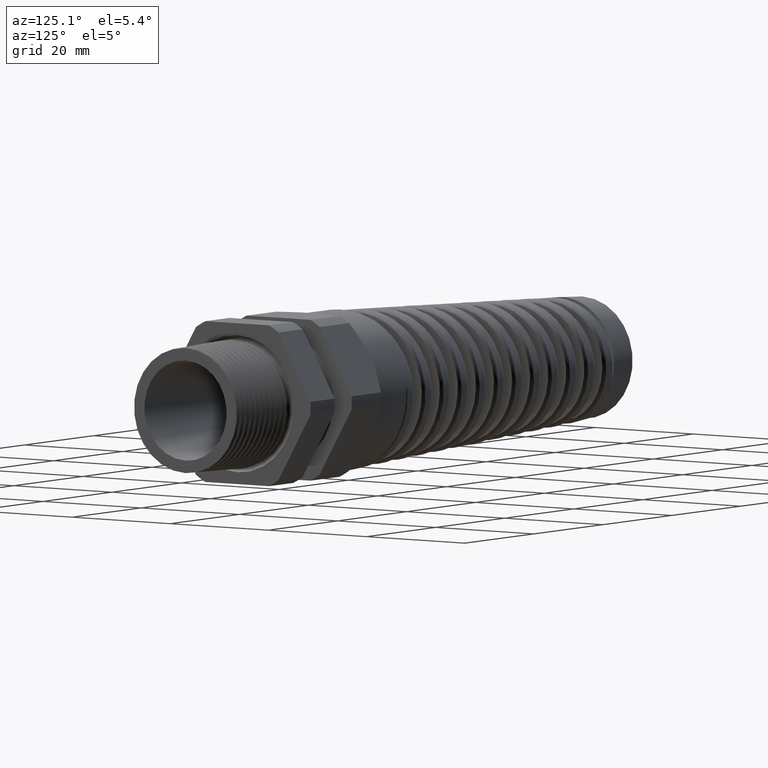
[diagram: clean part render]
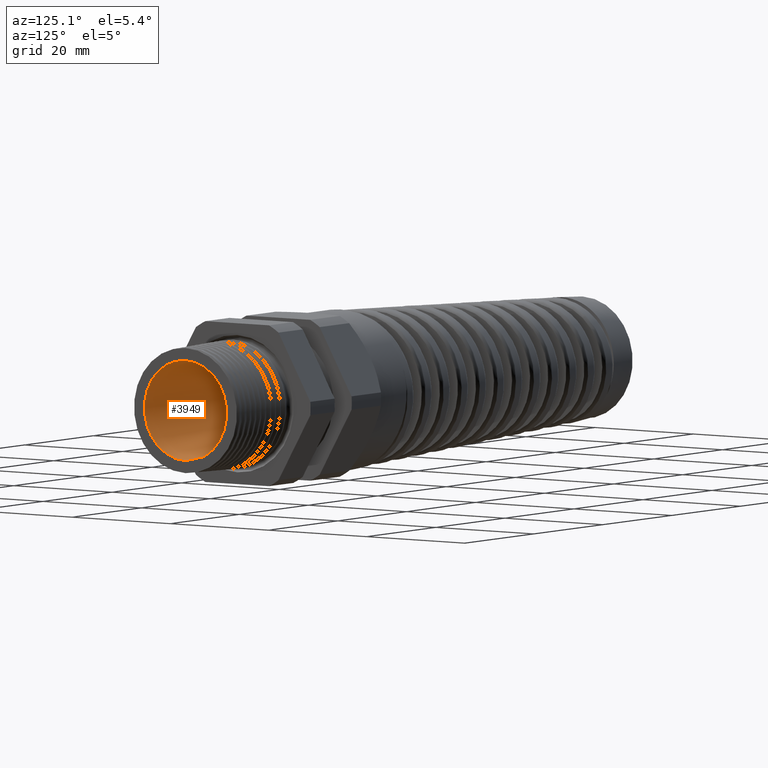
[diagram: same view with one face highlighted and labeled with its STEP entity id]
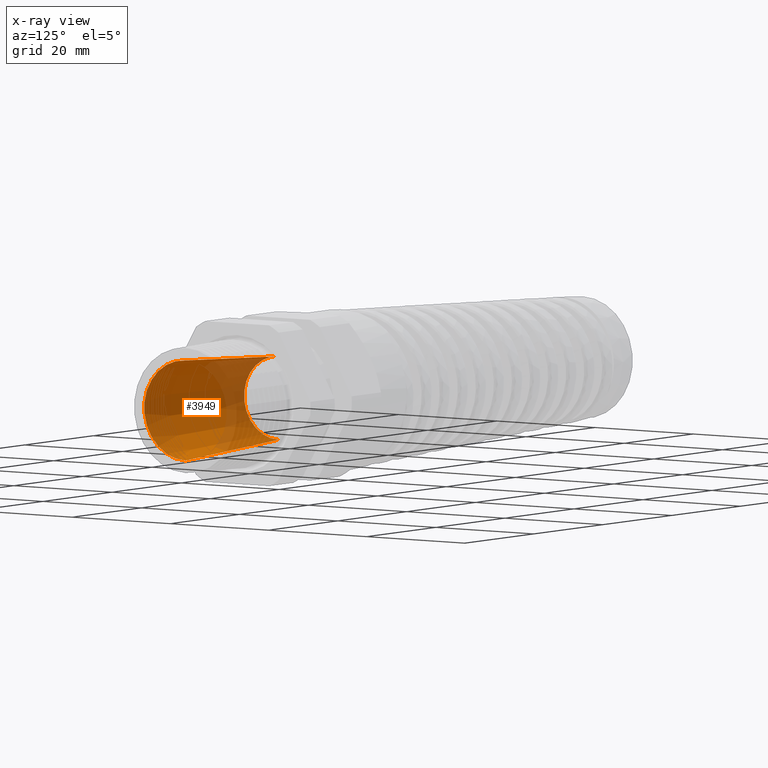
[diagram: x-ray of the same camera — body ghosted, the highlighted face saturated]
A machine part, auxiliary view. The second image highlights one B-rep face of the part: STEP entity #3949.
The next image is the same camera in x-ray: the body ghosted, the highlighted face saturated — about 30% of this face is hidden behind the body in this view.
In plain terms, the highlighted conical surface has half-angle 2.97 deg.
Its self-contained STEP definition (entity closure, byte-faithful):
#3949 = ADVANCED_FACE ( 'NONE', ( #17637 ), #17567, .F. ) ;
#3950 = EDGE_LOOP ( 'NONE', ( #3951, #3955, #3976, #4362 ) ) ;
#3951 = ORIENTED_EDGE ( 'NONE', *, *, #3952, .F. ) ;
#3952 = EDGE_CURVE ( 'NONE', #3953, #3954, #17563, .T. ) ;
#3953 = VERTEX_POINT ( 'NONE', #17559 ) ;
#3954 = VERTEX_POINT ( 'NONE', #17558 ) ;
#3955 = ORIENTED_EDGE ( 'NONE', *, *, #3956, .T. ) ;
#3956 = EDGE_CURVE ( 'NONE', #3953, #3975, #17557, .T. ) ;
#3975 = VERTEX_POINT ( 'NONE', #17947 ) ;
#3976 = ORIENTED_EDGE ( 'NONE', *, *, #3977, .T. ) ;
#3977 = EDGE_CURVE ( 'NONE', #3975, #4361, #17946, .T. ) ;
#4361 = VERTEX_POINT ( 'NONE', #18583 ) ;
#4362 = ORIENTED_EDGE ( 'NONE', *, *, #4363, .F. ) ;
#4363 = EDGE_CURVE ( 'NONE', #3954, #4361, #18582, .T. ) ;
#17554 = DIRECTION ( 'NONE',  ( 0.9986567915187993800, 6.345292932195006300E-018, 0.05181324882090775800 ) ) ;
#17555 = VECTOR ( 'NONE', #17554, 39.37007874015748100 ) ;
#17556 = CARTESIAN_POINT ( 'NONE',  ( -0.7800787401574805800, 3.367778697655221900E-017, 0.2750000000000000200 ) ) ;
#17557 = LINE ( 'NONE', #17556, #17555 ) ;
#17558 = CARTESIAN_POINT ( 'NONE',  ( -0.7800787401574805800, 0.0000000000000000000, -0.2750000000000000200 ) ) ;
#17559 = CARTESIAN_POINT ( 'NONE',  ( -0.7800787401574805800, 3.367778697655221900E-017, 0.2750000000000000200 ) ) ;
#17560 = DIRECTION ( 'NONE',  ( 0.0000000000000000000, 0.0000000000000000000, -1.000000000000000000 ) ) ;
#17561 = DIRECTION ( 'NONE',  ( 1.000000000000000000, 0.0000000000000000000, 0.0000000000000000000 ) ) ;
#17562 = AXIS2_PLACEMENT_3D ( 'NONE', #17636, #17561, #17560 ) ;
#17563 = CIRCLE ( 'NONE', #17562, 0.2750000000000000200 ) ;
#17564 = DIRECTION ( 'NONE',  ( 0.0000000000000000000, 0.0000000000000000000, -1.000000000000000000 ) ) ;
#17565 = DIRECTION ( 'NONE',  ( 1.000000000000000000, 0.0000000000000000000, 0.0000000000000000000 ) ) ;
#17566 = AXIS2_PLACEMENT_3D ( 'NONE', #17635, #17565, #17564 ) ;
#17567 = CONICAL_SURFACE ( 'NONE', #17566, 0.2750000000000000200, 0.05183645995742963700 ) ;
#17635 = CARTESIAN_POINT ( 'NONE',  ( -0.7800787401574805800, 0.0000000000000000000, 0.0000000000000000000 ) ) ;
#17636 = CARTESIAN_POINT ( 'NONE',  ( -0.7800787401574805800, 0.0000000000000000000, 0.0000000000000000000 ) ) ;
#17637 = FACE_OUTER_BOUND ( 'NONE', #3950, .T. ) ;
#17942 = DIRECTION ( 'NONE',  ( 0.0000000000000000000, 0.0000000000000000000, -1.000000000000000000 ) ) ;
#17943 = DIRECTION ( 'NONE',  ( 1.000000000000000000, 0.0000000000000000000, 0.0000000000000000000 ) ) ;
#17944 = CARTESIAN_POINT ( 'NONE',  ( 0.2800000000000000300, 0.0000000000000000000, 0.0000000000000000000 ) ) ;
#17945 = AXIS2_PLACEMENT_3D ( 'NONE', #17944, #17943, #17942 ) ;
#17946 = CIRCLE ( 'NONE', #17945, 0.3300000000000000200 ) ;
#17947 = CARTESIAN_POINT ( 'NONE',  ( 0.2800000000000000300, 4.041334437186265900E-017, 0.3300000000000000200 ) ) ;
#18579 = DIRECTION ( 'NONE',  ( 0.9986567915187993800, 0.0000000000000000000, -0.05181324882090775800 ) ) ;
#18580 = VECTOR ( 'NONE', #18579, 39.37007874015748100 ) ;
#18581 = CARTESIAN_POINT ( 'NONE',  ( -0.7800787401574805800, 0.0000000000000000000, -0.2750000000000000200 ) ) ;
#18582 = LINE ( 'NONE', #18581, #18580 ) ;
#18583 = CARTESIAN_POINT ( 'NONE',  ( 0.2800000000000000300, 0.0000000000000000000, -0.3300000000000000200 ) ) ;